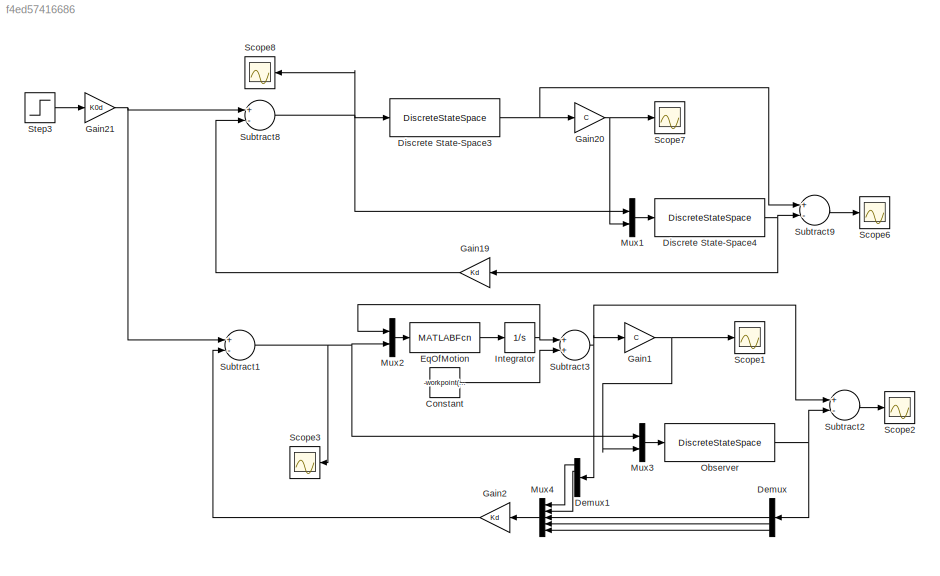
MODEL slx_f4ed57416686
KIND model
CONFIG AbsTol = auto
CONFIG FixedStep = auto
CONFIG MaxStep = auto
CONFIG MinStep = auto
CONFIG RelTol = 1e-3
CONFIG SampleTimeConstraint = Unconstrained
CONFIG Solver = ode45
CONFIG SolverMode = Auto
CONFIG SolverName = ode45
CONFIG StartTime = 0.0
CONFIG StopTime = 10.0
BLOCK [Constant] Constant
  Value = -workpoint(1:5)
BLOCK [Demux] Demux
  DisplayOption = bar
  Outputs = 5
  Ports = [1, 5]
BLOCK [Demux] Demux1
  DisplayOption = bar
  Outputs = 5
  Ports = [1, 5]
BLOCK [DiscreteStateSpace] Discrete State-Space3
  A = Ad
  B = Bd
  C = eye(5)
  D = zeros(5,1)
  SampleTime = h
  X0 = [0 0.1 0 0 0]
BLOCK [DiscreteStateSpace] Discrete State-Space4
  A = Ad-Ld*Cd
  B = [Bd Ld]
  C = eye(5)
  D = zeros(5,2)
  SampleTime = h
BLOCK [MATLABFcn] EqOfMotion
  MATLABFcn = Model(u(1:5),u(6))
  OutputDimensions = 5
  Ports = [1, 1]
BLOCK [Gain] Gain1
  Gain = C
  Multiplication = Matrix(K*u)
  OutDataTypeStr = Inherit: Inherit via internal rule
  ParamDataTypeStr = Inherit: Inherit via internal rule
  SaturateOnIntegerOverflow = off
BLOCK [Gain] Gain19
  Gain = Kd
  Multiplication = Matrix(K*u)
  OutDataTypeStr = Inherit: Inherit via internal rule
  ParamDataTypeStr = Inherit: Inherit via internal rule
  SaturateOnIntegerOverflow = off
BLOCK [Gain] Gain2
  Gain = Kd
  Multiplication = Matrix(K*u)
  OutDataTypeStr = Inherit: Inherit via internal rule
  ParamDataTypeStr = Inherit: Inherit via internal rule
  SaturateOnIntegerOverflow = off
BLOCK [Gain] Gain20
  Gain = C
  Multiplication = Matrix(K*u)
  OutDataTypeStr = Inherit: Inherit via internal rule
  ParamDataTypeStr = Inherit: Inherit via internal rule
  SaturateOnIntegerOverflow = off
BLOCK [Gain] Gain21
  Gain = K0d
  Multiplication = Matrix(K*u)
  OutDataTypeStr = Inherit: Inherit via internal rule
  ParamDataTypeStr = Inherit: Inherit via internal rule
  SaturateOnIntegerOverflow = off
BLOCK [Integrator] Integrator
  InitialCondition = workpoint(1:5) + [0 0.1 0 0 0]
  Ports = [1, 1]
BLOCK [Mux] Mux1
  DisplayOption = bar
  Inputs = 2
  Ports = [2, 1]
BLOCK [Mux] Mux2
  DisplayOption = bar
  Inputs = 2
  Ports = [2, 1]
BLOCK [Mux] Mux3
  DisplayOption = bar
  Inputs = 2
  Ports = [2, 1]
BLOCK [Mux] Mux4
  DisplayOption = bar
  Inputs = 5
  Ports = [5, 1]
BLOCK [DiscreteStateSpace] Observer 
  A = Ad-Ld*Cd
  B = [Bd Ld]
  C = eye(5)
  D = zeros(5,2)
  SampleTime = h
  X0 = workpoint(1:5)
BLOCK [Scope] Scope1
  DataFormat = StructureWithTime
  Floating = off
  NumInputPorts = 1
  Ports = [1]
  SampleTime = 0
  YMax = -10500
  YMin = -13000
BLOCK [Scope] Scope2
  DataFormat = StructureWithTime
  Floating = off
  NumInputPorts = 1
  Ports = [1]
  SampleTime = 0
  SaveName = ScopeData3
  TimeRange = 10
  YMax = 1.2e+43
  YMin = -2e+42
BLOCK [Scope] Scope3
  DataFormat = StructureWithTime
  Floating = off
  NumInputPorts = 1
  Ports = [1]
  SampleTime = 0
  SaveName = ScopeData4
  TimeRange = 10
  YMax = 1.2e+43
  YMin = -2e+42
BLOCK [Scope] Scope6
  DataFormat = StructureWithTime
  Floating = off
  NumInputPorts = 1
  Ports = [1]
  SampleTime = 0
  SaveName = ScopeData1
  TimeRange = 10
  YMax = 1.2e+43
  YMin = -2e+42
BLOCK [Scope] Scope7
  DataFormat = StructureWithTime
  Floating = off
  NumInputPorts = 1
  Ports = [1]
  SampleTime = 0
  SaveName = ScopeData2
BLOCK [Scope] Scope8
  Floating = off
  NumInputPorts = 1
  Ports = [1]
  SampleTime = 0
  SaveName = outobs
  SaveToWorkspace = on
  TimeRange = 10
  YMax = 10
  YMin = -90
BLOCK [Step] Step3
  After = 0
  SampleTime = 0
  Time = 0
BLOCK [Sum] Subtract1
  InputSameDT = off
  Inputs = +-
  OutDataTypeStr = Inherit: Inherit via internal rule
  Ports = [2, 1]
  SaturateOnIntegerOverflow = off
BLOCK [Sum] Subtract2
  InputSameDT = off
  Inputs = +-
  OutDataTypeStr = Inherit: Inherit via internal rule
  Ports = [2, 1]
  SaturateOnIntegerOverflow = off
BLOCK [Sum] Subtract3
  InputSameDT = off
  OutDataTypeStr = Inherit: Inherit via internal rule
  Ports = [2, 1]
  SaturateOnIntegerOverflow = off
BLOCK [Sum] Subtract8
  InputSameDT = off
  Inputs = +-
  OutDataTypeStr = Inherit: Inherit via internal rule
  Ports = [2, 1]
  SaturateOnIntegerOverflow = off
BLOCK [Sum] Subtract9
  InputSameDT = off
  Inputs = +-
  OutDataTypeStr = Inherit: Inherit via internal rule
  Ports = [2, 1]
  SaturateOnIntegerOverflow = off
LINE Constant:1 -> Subtract3:2
LINE Demux1:1 -> Mux4:1
LINE Demux1:2 -> Mux4:2
LINE Demux:3 -> Mux4:3
LINE Demux:4 -> Mux4:4
LINE Demux:5 -> Mux4:5
NET Discrete State-Space3:1 -> Gain20:1, Subtract9:1
NET Discrete State-Space4:1 -> Gain19:1, Subtract9:2
LINE EqOfMotion:1 -> Integrator:1
LINE Gain19:1 -> Subtract8:2
NET Gain1:1 -> Mux3:2, Scope1:1
NET Gain20:1 -> Mux1:2, Scope7:1
NET Gain21:1 -> Subtract1:1, Subtract8:1
LINE Gain2:1 -> Subtract1:2
NET Integrator:1 -> Mux2:1, Subtract3:1
LINE Mux1:1 -> Discrete State-Space4:1
LINE Mux2:1 -> EqOfMotion:1
LINE Mux3:1 -> Observer :1
LINE Mux4:1 -> Gain2:1
NET Observer :1 -> Demux:1, Subtract2:2
LINE Step3:1 -> Gain21:1
NET Subtract1:1 -> Mux2:2, Mux3:1, Scope3:1
LINE Subtract2:1 -> Scope2:1
NET Subtract3:1 -> Demux1:1, Gain1:1, Subtract2:1
NET Subtract8:1 -> Discrete State-Space3:1, Mux1:1, Scope8:1
LINE Subtract9:1 -> Scope6:1
note: NET lines group one-source signal fan-out (src -> all destinations, sorted); 1:1 wires keep LINE
